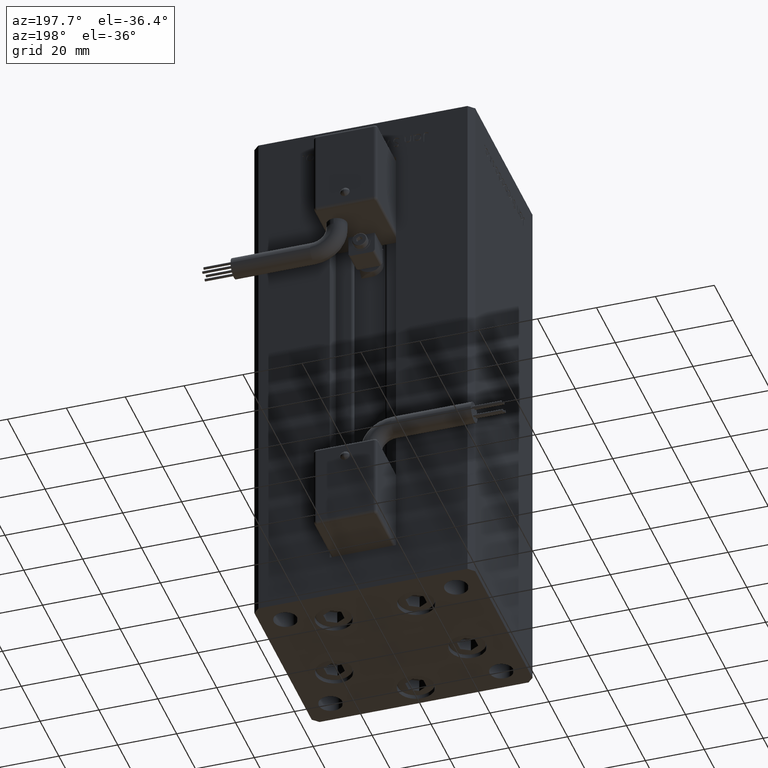
[diagram: clean part render]
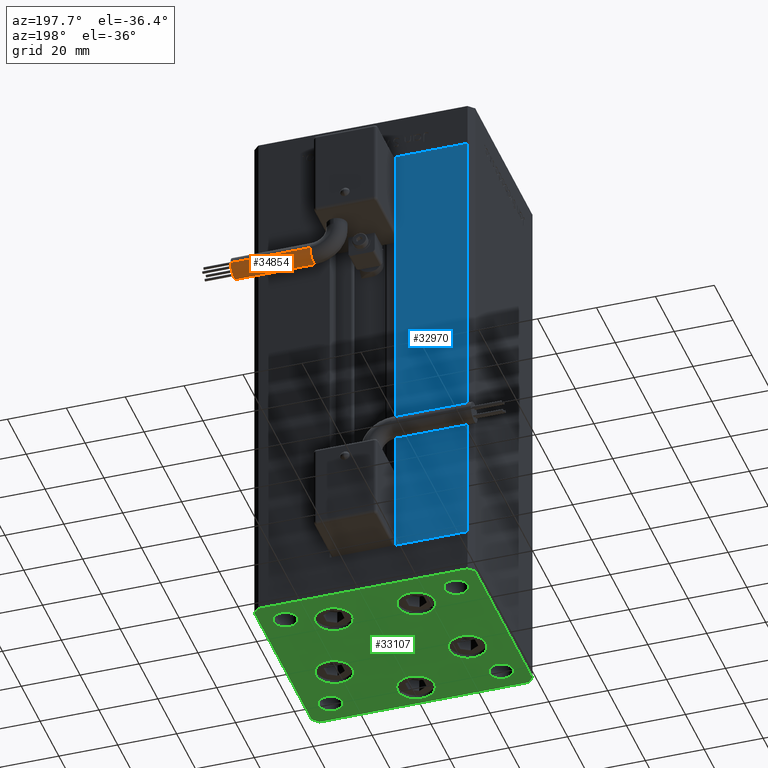
[diagram: same view with three faces highlighted in distinct colors, each labeled with its STEP entity id]
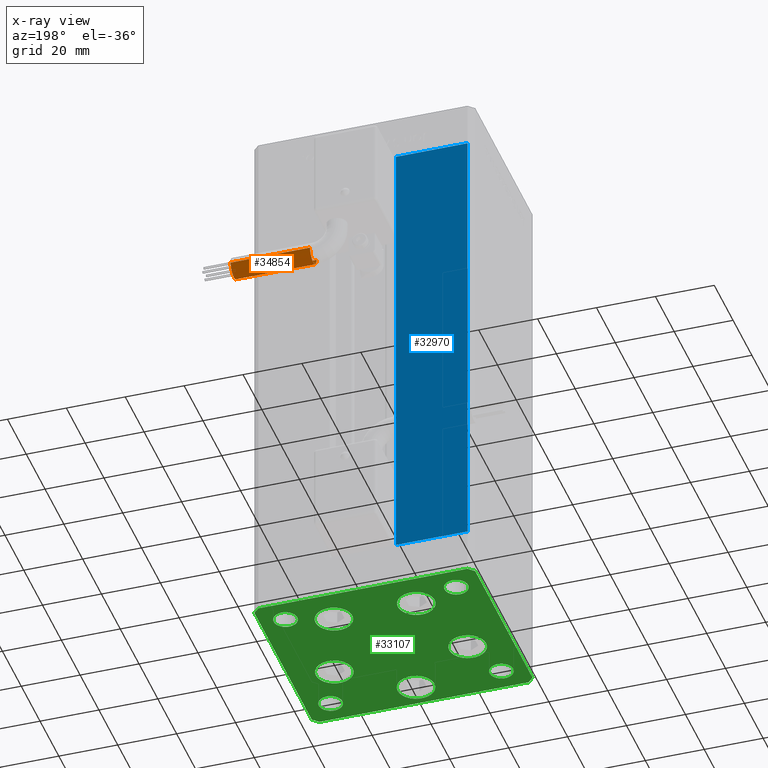
[diagram: x-ray of the same camera — body ghosted, the three highlighted faces saturated]
A machine part, auxiliary view with three faces highlighted in distinct colors.
The next image is the same camera in x-ray (body ghosted, the three faces saturated) — at least one of them is partly hidden behind the body in this view.
Their STEP definitions:

[orange] entity #34854 — the highlighted cylindrical surface (edge-blend (fillet) strip) has radius 3.5 mm, axis along (1, -0, 0).
#57 = VERTEX_POINT ( 'NONE', #15953 ) ;
#163 = CARTESIAN_POINT ( 'NONE',  ( 13.79999999999999893, 42.00000000000000000, -65.00000000000000000 ) ) ;
#803 = DIRECTION ( 'NONE',  ( 1.000000000000000000, 0.000000000000000000, 2.220446049250000002E-16 ) ) ;
#1686 = CIRCLE ( 'NONE', #48043, 3.500000000000003109 ) ;
#1739 = EDGE_CURVE ( 'NONE', #36320, #57, #17836, .T. ) ;
#2040 = ORIENTED_EDGE ( 'NONE', *, *, #25186, .F. ) ;
#2506 = CARTESIAN_POINT ( 'NONE',  ( 40.80000000000000426, 42.00000000000000000, -65.00000000000000000 ) ) ;
#3254 = CARTESIAN_POINT ( 'NONE',  ( 13.79999999999999893, 45.50000000000000711, -65.00000000000000000 ) ) ;
#5005 = DIRECTION ( 'NONE',  ( 1.000000000000000000, -2.599999999999999847E-16, 2.220446049250000002E-16 ) ) ;
#5269 = CARTESIAN_POINT ( 'NONE',  ( 13.79999999999999893, 42.00000000000000000, -65.00000000000000000 ) ) ;
#7209 = CARTESIAN_POINT ( 'NONE',  ( 13.79999999999999716, 38.50000000000000000, -65.00000000000000000 ) ) ;
#7826 = CIRCLE ( 'NONE', #38175, 3.500000000000003109 ) ;
#9467 = DIRECTION ( 'NONE',  ( 0.000000000000000000, 0.000000000000000000, -1.000000000000000000 ) ) ;
#10893 = DIRECTION ( 'NONE',  ( 0.000000000000000000, 0.000000000000000000, -1.000000000000000000 ) ) ;
#11193 = CARTESIAN_POINT ( 'NONE',  ( 13.79999999999999893, 42.00000000000000000, -68.50000000000000000 ) ) ;
#12219 = LINE ( 'NONE', #7209, #16970 ) ;
#13666 = CARTESIAN_POINT ( 'NONE',  ( 13.79999999999999893, 42.00000000000000000, -65.00000000000000000 ) ) ;
#15814 = ORIENTED_EDGE ( 'NONE', *, *, #30565, .F. ) ;
#15953 = CARTESIAN_POINT ( 'NONE',  ( 40.80000000000000426, 45.50000000000000711, -65.00000000000000000 ) ) ;
#16902 = DIRECTION ( 'NONE',  ( 0.000000000000000000, 0.000000000000000000, -1.000000000000000000 ) ) ;
#16970 = VECTOR ( 'NONE', #20583, 1000.000000000000000 ) ;
#17175 = DIRECTION ( 'NONE',  ( 1.000000000000000000, 0.000000000000000000, 2.220446049250000002E-16 ) ) ;
#17317 = FACE_OUTER_BOUND ( 'NONE', #23725, .T. ) ;
#17560 = CARTESIAN_POINT ( 'NONE',  ( 13.80000000000000071, 45.50000000000000711, -65.00000000000000000 ) ) ;
#17836 = LINE ( 'NONE', #17560, #36565 ) ;
#20583 = DIRECTION ( 'NONE',  ( 1.000000000000000000, -2.599999999999999847E-16, 2.220446049250000002E-16 ) ) ;
#21502 = DIRECTION ( 'NONE',  ( -4.956352788505158337E-16, -1.000000000000000000, 0.000000000000000000 ) ) ;
#23693 = EDGE_CURVE ( 'NONE', #44840, #36320, #7826, .T. ) ;
#23725 = EDGE_LOOP ( 'NONE', ( #52885, #30755, #45816, #2040, #15814 ) ) ;
#23921 = CIRCLE ( 'NONE', #38213, 3.500000000000003109 ) ;
#25186 = EDGE_CURVE ( 'NONE', #45062, #57, #23921, .T. ) ;
#25922 = EDGE_CURVE ( 'NONE', #41319, #44840, #1686, .T. ) ;
#26533 = DIRECTION ( 'NONE',  ( 1.000000000000000000, -2.599999999999999847E-16, 2.220446049250000002E-16 ) ) ;
#30565 = EDGE_CURVE ( 'NONE', #41319, #45062, #12219, .T. ) ;
#30755 = ORIENTED_EDGE ( 'NONE', *, *, #23693, .T. ) ;
#31356 = CARTESIAN_POINT ( 'NONE',  ( 13.79999999999999893, 38.50000000000000000, -65.00000000000000000 ) ) ;
#32277 = AXIS2_PLACEMENT_3D ( 'NONE', #13666, #26533, #21502 ) ;
#32654 = DIRECTION ( 'NONE',  ( 1.000000000000000000, 0.000000000000000000, 2.220446049250000002E-16 ) ) ;
#32892 = CARTESIAN_POINT ( 'NONE',  ( 40.80000000000000426, 38.50000000000000000, -65.00000000000000000 ) ) ;
#34854 = ADVANCED_FACE ( 'NONE', ( #17317 ), #35196, .T. ) ;
#35196 = CYLINDRICAL_SURFACE ( 'NONE', #32277, 3.500000000000003109 ) ;
#36320 = VERTEX_POINT ( 'NONE', #3254 ) ;
#36565 = VECTOR ( 'NONE', #5005, 1000.000000000000000 ) ;
#38175 = AXIS2_PLACEMENT_3D ( 'NONE', #163, #17175, #16902 ) ;
#38213 = AXIS2_PLACEMENT_3D ( 'NONE', #2506, #32654, #10893 ) ;
#41319 = VERTEX_POINT ( 'NONE', #31356 ) ;
#44840 = VERTEX_POINT ( 'NONE', #11193 ) ;
#45062 = VERTEX_POINT ( 'NONE', #32892 ) ;
#45816 = ORIENTED_EDGE ( 'NONE', *, *, #1739, .T. ) ;
#48043 = AXIS2_PLACEMENT_3D ( 'NONE', #5269, #803, #9467 ) ;
#52885 = ORIENTED_EDGE ( 'NONE', *, *, #25922, .T. ) ;

[blue] entity #32970 — the highlighted planar face has unit normal (0, -1, 0).
#443 = FACE_OUTER_BOUND ( 'NONE', #50356, .T. ) ;
#1725 = CARTESIAN_POINT ( 'NONE',  ( -35.50000000000000000, 32.49999999999999289, 156.0000000000000000 ) ) ;
#2264 = LINE ( 'NONE', #22656, #10652 ) ;
#6292 = EDGE_CURVE ( 'NONE', #42301, #49949, #33515, .T. ) ;
#6393 = VECTOR ( 'NONE', #26193, 1000.000000000000000 ) ;
#9411 = ORIENTED_EDGE ( 'NONE', *, *, #6292, .T. ) ;
#10652 = VECTOR ( 'NONE', #31865, 1000.000000000000000 ) ;
#14267 = VECTOR ( 'NONE', #41627, 1000.000000000000000 ) ;
#15640 = ORIENTED_EDGE ( 'NONE', *, *, #27811, .F. ) ;
#16972 = LINE ( 'NONE', #21717, #6393 ) ;
#17464 = DIRECTION ( 'NONE',  ( 0.000000000000000000, -0.000000000000000000, -1.000000000000000000 ) ) ;
#17644 = CARTESIAN_POINT ( 'NONE',  ( -35.50000000000000000, 32.49999999999999289, 0.000000000000000000 ) ) ;
#17668 = CARTESIAN_POINT ( 'NONE',  ( -11.25000000000000178, 32.49999999999999289, 0.000000000000000000 ) ) ;
#19935 = ORIENTED_EDGE ( 'NONE', *, *, #36749, .T. ) ;
#20544 = CARTESIAN_POINT ( 'NONE',  ( -11.25000000000000178, 32.49999999999999289, 156.0000000000000000 ) ) ;
#21290 = VERTEX_POINT ( 'NONE', #17644 ) ;
#21717 = CARTESIAN_POINT ( 'NONE',  ( -11.25000000000000178, 32.49999999999999289, 0.000000000000000000 ) ) ;
#22656 = CARTESIAN_POINT ( 'NONE',  ( -11.25000000000000178, 32.49999999999999289, 0.000000000000000000 ) ) ;
#24579 = CARTESIAN_POINT ( 'NONE',  ( -11.25000000000000178, 32.49999999999999289, 156.0000000000000000 ) ) ;
#26193 = DIRECTION ( 'NONE',  ( -1.000000000000000000, 0.000000000000000000, 0.000000000000000000 ) ) ;
#27811 = EDGE_CURVE ( 'NONE', #39331, #49949, #2264, .T. ) ;
#29354 = EDGE_CURVE ( 'NONE', #42301, #21290, #44689, .T. ) ;
#30345 = VECTOR ( 'NONE', #36585, 1000.000000000000000 ) ;
#31865 = DIRECTION ( 'NONE',  ( -0.000000000000000000, -0.000000000000000000, 1.000000000000000000 ) ) ;
#32970 = ADVANCED_FACE ( 'NONE', ( #443 ), #46240, .F. ) ;
#33515 = LINE ( 'NONE', #24579, #14267 ) ;
#35496 = CARTESIAN_POINT ( 'NONE',  ( -35.50000000000000000, 32.49999999999999289, 156.0000000000000000 ) ) ;
#36585 = DIRECTION ( 'NONE',  ( -0.000000000000000000, -0.000000000000000000, -1.000000000000000000 ) ) ;
#36749 = EDGE_CURVE ( 'NONE', #39331, #21290, #16972, .T. ) ;
#39331 = VERTEX_POINT ( 'NONE', #17668 ) ;
#40286 = AXIS2_PLACEMENT_3D ( 'NONE', #20544, #42884, #17464 ) ;
#41627 = DIRECTION ( 'NONE',  ( 1.000000000000000000, 0.000000000000000000, 0.000000000000000000 ) ) ;
#42301 = VERTEX_POINT ( 'NONE', #1725 ) ;
#42884 = DIRECTION ( 'NONE',  ( 0.000000000000000000, -1.000000000000000000, 0.000000000000000000 ) ) ;
#43376 = ORIENTED_EDGE ( 'NONE', *, *, #29354, .F. ) ;
#43429 = CARTESIAN_POINT ( 'NONE',  ( -11.25000000000000178, 32.49999999999999289, 156.0000000000000000 ) ) ;
#44689 = LINE ( 'NONE', #35496, #30345 ) ;
#46240 = PLANE ( 'NONE',  #40286 ) ;
#49949 = VERTEX_POINT ( 'NONE', #43429 ) ;
#50356 = EDGE_LOOP ( 'NONE', ( #9411, #15640, #19935, #43376 ) ) ;

[green] entity #33107 — the highlighted planar face has unit normal (0, 0, -1).
#165 = ORIENTED_EDGE ( 'NONE', *, *, #3898, .T. ) ;
#300 = CIRCLE ( 'NONE', #39536, 4.000000000000003553 ) ;
#376 = AXIS2_PLACEMENT_3D ( 'NONE', #32253, #27795, #28068 ) ;
#433 = CARTESIAN_POINT ( 'NONE',  ( 13.99106857963322348, 19.50000000000000000, 0.000000000000000000 ) ) ;
#724 = ORIENTED_EDGE ( 'NONE', *, *, #25832, .T. ) ;
#828 = DIRECTION ( 'NONE',  ( 0.000000000000000000, -0.000000000000000000, -1.000000000000000000 ) ) ;
#897 = CARTESIAN_POINT ( 'NONE',  ( -35.49999999999998579, -32.50000000000001421, 0.000000000000000000 ) ) ;
#950 = ORIENTED_EDGE ( 'NONE', *, *, #39275, .T. ) ;
#1494 = DIRECTION ( 'NONE',  ( 1.000000000000000000, 0.000000000000000000, 0.000000000000000000 ) ) ;
#1525 = DIRECTION ( 'NONE',  ( 0.000000000000000000, -0.000000000000000000, -1.000000000000000000 ) ) ;
#1571 = CIRCLE ( 'NONE', #39095, 3.999999999999996447 ) ;
#2019 = VECTOR ( 'NONE', #27411, 1000.000000000000000 ) ;
#2519 = ORIENTED_EDGE ( 'NONE', *, *, #25882, .T. ) ;
#2776 = DIRECTION ( 'NONE',  ( 0.7071067811865474617, -0.7071067811865474617, 0.000000000000000000 ) ) ;
#2799 = AXIS2_PLACEMENT_3D ( 'NONE', #39054, #13053, #47404 ) ;
#2955 = CARTESIAN_POINT ( 'NONE',  ( 22.62741699796951877, -8.000000000000000000, 0.000000000000000000 ) ) ;
#3005 = DIRECTION ( 'NONE',  ( -1.478780668045802821E-15, 1.000000000000000000, 0.000000000000000000 ) ) ;
#3149 = VERTEX_POINT ( 'NONE', #897 ) ;
#3336 = VERTEX_POINT ( 'NONE', #18139 ) ;
#3898 = EDGE_CURVE ( 'NONE', #29149, #11282, #50864, .T. ) ;
#3942 = EDGE_CURVE ( 'NONE', #27456, #33888, #44535, .T. ) ;
#3996 = CARTESIAN_POINT ( 'NONE',  ( -25.00000000000001421, 24.00000000000000711, 0.000000000000000000 ) ) ;
#4444 = LINE ( 'NONE', #43527, #26632 ) ;
#4996 = DIRECTION ( 'NONE',  ( 4.550094363217855288E-16, -1.000000000000000000, 0.000000000000000000 ) ) ;
#5069 = ORIENTED_EDGE ( 'NONE', *, *, #39832, .T. ) ;
#5156 = CIRCLE ( 'NONE', #50615, 6.250000000000000000 ) ;
#5729 = CARTESIAN_POINT ( 'NONE',  ( 13.99106857963322348, 19.50000000000000000, 0.000000000000000000 ) ) ;
#6169 = VERTEX_POINT ( 'NONE', #36601 ) ;
#6845 = CARTESIAN_POINT ( 'NONE',  ( 29.00000000000001066, -23.99999999999999289, 0.000000000000000000 ) ) ;
#7068 = ORIENTED_EDGE ( 'NONE', *, *, #22734, .T. ) ;
#7359 = CARTESIAN_POINT ( 'NONE',  ( -25.00000000000001066, -23.99999999999999289, 0.000000000000000000 ) ) ;
#7436 = AXIS2_PLACEMENT_3D ( 'NONE', #9673, #47643, #35630 ) ;
#7995 = CARTESIAN_POINT ( 'NONE',  ( 22.62741699796951877, -8.000000000000000000, 0.000000000000000000 ) ) ;
#8979 = AXIS2_PLACEMENT_3D ( 'NONE', #19078, #9884, #1494 ) ;
#9091 = DIRECTION ( 'NONE',  ( 0.000000000000000000, -0.000000000000000000, -1.000000000000000000 ) ) ;
#9228 = VERTEX_POINT ( 'NONE', #24907 ) ;
#9561 = DIRECTION ( 'NONE',  ( 1.000000000000000000, 0.000000000000000000, 0.000000000000000000 ) ) ;
#9650 = DIRECTION ( 'NONE',  ( 1.000000000000000000, 0.000000000000000000, 0.000000000000000000 ) ) ;
#9673 = CARTESIAN_POINT ( 'NONE',  ( 2.939152317953647500E-15, -24.00000000000000000, 0.000000000000000000 ) ) ;
#9884 = DIRECTION ( 'NONE',  ( 0.000000000000000000, -0.000000000000000000, -1.000000000000000000 ) ) ;
#10076 = EDGE_LOOP ( 'NONE', ( #30337, #950 ) ) ;
#10106 = CARTESIAN_POINT ( 'NONE',  ( -35.49999999999998579, -32.50000000000001421, 0.000000000000000000 ) ) ;
#10195 = FACE_OUTER_BOUND ( 'NONE', #33338, .T. ) ;
#10905 = VECTOR ( 'NONE', #28507, 999.9999999999998863 ) ;
#10985 = ORIENTED_EDGE ( 'NONE', *, *, #43400, .T. ) ;
#11282 = VERTEX_POINT ( 'NONE', #54837 ) ;
#11372 = VERTEX_POINT ( 'NONE', #53068 ) ;
#11472 = CARTESIAN_POINT ( 'NONE',  ( 37.49999999999992184, 30.50000000000001066, 0.000000000000000000 ) ) ;
#12791 = EDGE_CURVE ( 'NONE', #40446, #28739, #45049, .T. ) ;
#12915 = CARTESIAN_POINT ( 'NONE',  ( -29.00000000000001066, -23.99999999999999289, 0.000000000000000000 ) ) ;
#13053 = DIRECTION ( 'NONE',  ( 0.000000000000000000, -0.000000000000000000, -1.000000000000000000 ) ) ;
#13674 = VERTEX_POINT ( 'NONE', #3996 ) ;
#13813 = FACE_BOUND ( 'NONE', #36160, .T. ) ;
#13974 = CARTESIAN_POINT ( 'NONE',  ( -33.00000000000000711, -23.99999999999999289, 0.000000000000000000 ) ) ;
#14474 = AXIS2_PLACEMENT_3D ( 'NONE', #26856, #43894, #9561 ) ;
#14663 = DIRECTION ( 'NONE',  ( 0.000000000000000000, -0.000000000000000000, -1.000000000000000000 ) ) ;
#15225 = AXIS2_PLACEMENT_3D ( 'NONE', #6845, #28053, #53195 ) ;
#15442 = CARTESIAN_POINT ( 'NONE',  ( 16.37741699796951877, -8.000000000000000000, 0.000000000000000000 ) ) ;
#16013 = ORIENTED_EDGE ( 'NONE', *, *, #23755, .T. ) ;
#16359 = DIRECTION ( 'NONE',  ( 0.000000000000000000, -0.000000000000000000, -1.000000000000000000 ) ) ;
#17876 = CARTESIAN_POINT ( 'NONE',  ( -33.00000000000000711, 24.00000000000000711, 0.000000000000000000 ) ) ;
#18139 = CARTESIAN_POINT ( 'NONE',  ( -6.249999999999997335, -24.00000000000000000, 0.000000000000000000 ) ) ;
#18155 = AXIS2_PLACEMENT_3D ( 'NONE', #18586, #52650, #51559 ) ;
#18357 = CARTESIAN_POINT ( 'NONE',  ( 33.00000000000001421, 24.00000000000000711, 0.000000000000000000 ) ) ;
#18583 = ORIENTED_EDGE ( 'NONE', *, *, #38431, .F. ) ;
#18586 = CARTESIAN_POINT ( 'NONE',  ( -13.99106857963322703, 19.49999999999999645, 0.000000000000000000 ) ) ;
#18624 = EDGE_CURVE ( 'NONE', #51477, #11372, #29524, .T. ) ;
#18894 = VERTEX_POINT ( 'NONE', #35640 ) ;
#19016 = DIRECTION ( 'NONE',  ( -0.000000000000000000, 0.000000000000000000, 1.000000000000000000 ) ) ;
#19078 = CARTESIAN_POINT ( 'NONE',  ( -29.00000000000001066, -23.99999999999999289, 0.000000000000000000 ) ) ;
#19321 = EDGE_CURVE ( 'NONE', #13674, #40287, #1571, .T. ) ;
#19709 = DIRECTION ( 'NONE',  ( 1.000000000000000000, 0.000000000000000000, 0.000000000000000000 ) ) ;
#19723 = ORIENTED_EDGE ( 'NONE', *, *, #42223, .F. ) ;
#19934 = EDGE_CURVE ( 'NONE', #3336, #36903, #52422, .T. ) ;
#20215 = VERTEX_POINT ( 'NONE', #35022 ) ;
#20242 = CIRCLE ( 'NONE', #34539, 6.250000000000001776 ) ;
#20631 = CARTESIAN_POINT ( 'NONE',  ( -37.49999999999998579, -30.50000000000001421, 0.000000000000000000 ) ) ;
#20955 = ORIENTED_EDGE ( 'NONE', *, *, #32186, .T. ) ;
#20974 = AXIS2_PLACEMENT_3D ( 'NONE', #49767, #53684, #23274 ) ;
#21203 = AXIS2_PLACEMENT_3D ( 'NONE', #12915, #38635, #54808 ) ;
#21926 = FACE_BOUND ( 'NONE', #28893, .T. ) ;
#22047 = CARTESIAN_POINT ( 'NONE',  ( 29.00000000000001066, -23.99999999999999289, 0.000000000000000000 ) ) ;
#22188 = DIRECTION ( 'NONE',  ( 1.000000000000000000, 0.000000000000000000, 0.000000000000000000 ) ) ;
#22427 = EDGE_LOOP ( 'NONE', ( #165, #38842 ) ) ;
#22568 = LINE ( 'NONE', #35161, #42703 ) ;
#22734 = EDGE_CURVE ( 'NONE', #49313, #42552, #20242, .T. ) ;
#23125 = EDGE_CURVE ( 'NONE', #25449, #45343, #31895, .T. ) ;
#23274 = DIRECTION ( 'NONE',  ( 1.000000000000000000, 0.000000000000000000, 0.000000000000000000 ) ) ;
#23425 = VECTOR ( 'NONE', #48574, 1000.000000000000000 ) ;
#23755 = EDGE_CURVE ( 'NONE', #31217, #6169, #5156, .T. ) ;
#23913 = DIRECTION ( 'NONE',  ( 0.000000000000000000, -0.000000000000000000, -1.000000000000000000 ) ) ;
#24123 = VECTOR ( 'NONE', #52918, 1000.000000000000000 ) ;
#24907 = CARTESIAN_POINT ( 'NONE',  ( 25.00000000000000711, 24.00000000000000711, 0.000000000000000000 ) ) ;
#25449 = VERTEX_POINT ( 'NONE', #13974 ) ;
#25832 = EDGE_CURVE ( 'NONE', #20215, #51477, #4444, .T. ) ;
#25882 = EDGE_CURVE ( 'NONE', #26149, #18894, #22568, .T. ) ;
#26149 = VERTEX_POINT ( 'NONE', #42374 ) ;
#26386 = CARTESIAN_POINT ( 'NONE',  ( -13.99106857963322703, 19.49999999999999645, 0.000000000000000000 ) ) ;
#26632 = VECTOR ( 'NONE', #38528, 1000.000000000000000 ) ;
#26856 = CARTESIAN_POINT ( 'NONE',  ( 29.00000000000001066, 24.00000000000000711, 0.000000000000000000 ) ) ;
#26945 = FACE_BOUND ( 'NONE', #38375, .T. ) ;
#26964 = CIRCLE ( 'NONE', #14474, 4.000000000000003553 ) ;
#27411 = DIRECTION ( 'NONE',  ( 1.000000000000000000, 9.773090005503140331E-17, 0.000000000000000000 ) ) ;
#27432 = VECTOR ( 'NONE', #3005, 1000.000000000000000 ) ;
#27456 = VERTEX_POINT ( 'NONE', #43132 ) ;
#27517 = CARTESIAN_POINT ( 'NONE',  ( 2.939152317953647500E-15, -24.00000000000000000, 0.000000000000000000 ) ) ;
#27795 = DIRECTION ( 'NONE',  ( -0.000000000000000000, 0.000000000000000000, 1.000000000000000000 ) ) ;
#27900 = CARTESIAN_POINT ( 'NONE',  ( 28.87741699796952233, -8.000000000000000000, 0.000000000000000000 ) ) ;
#28053 = DIRECTION ( 'NONE',  ( 0.000000000000000000, -0.000000000000000000, -1.000000000000000000 ) ) ;
#28068 = DIRECTION ( 'NONE',  ( 1.000000000000000000, 0.000000000000000000, 0.000000000000000000 ) ) ;
#28171 = CARTESIAN_POINT ( 'NONE',  ( -35.50000000000002842, 32.49999999999999289, 0.000000000000000000 ) ) ;
#28329 = CARTESIAN_POINT ( 'NONE',  ( 33.00000000000001421, -23.99999999999999289, 0.000000000000000000 ) ) ;
#28507 = DIRECTION ( 'NONE',  ( -0.7071067811865482389, 0.7071067811865469066, 0.000000000000000000 ) ) ;
#28580 = EDGE_CURVE ( 'NONE', #18894, #3149, #28743, .T. ) ;
#28649 = AXIS2_PLACEMENT_3D ( 'NONE', #7995, #16359, #45960 ) ;
#28676 = CIRCLE ( 'NONE', #2799, 6.250000000000001776 ) ;
#28739 = VERTEX_POINT ( 'NONE', #30682 ) ;
#28743 = LINE ( 'NONE', #20631, #37436 ) ;
#28893 = EDGE_LOOP ( 'NONE', ( #48370, #32852 ) ) ;
#28921 = CARTESIAN_POINT ( 'NONE',  ( 20.24106857963322526, 19.50000000000000000, 0.000000000000000000 ) ) ;
#29149 = VERTEX_POINT ( 'NONE', #28329 ) ;
#29524 = LINE ( 'NONE', #32874, #27432 ) ;
#30270 = EDGE_CURVE ( 'NONE', #45343, #25449, #46394, .T. ) ;
#30337 = ORIENTED_EDGE ( 'NONE', *, *, #32040, .T. ) ;
#30592 = FACE_BOUND ( 'NONE', #32044, .T. ) ;
#30682 = CARTESIAN_POINT ( 'NONE',  ( -28.87741699796952233, -8.000000000000005329, 0.000000000000000000 ) ) ;
#30752 = ORIENTED_EDGE ( 'NONE', *, *, #19934, .T. ) ;
#30862 = FACE_BOUND ( 'NONE', #10076, .T. ) ;
#31217 = VERTEX_POINT ( 'NONE', #28921 ) ;
#31296 = AXIS2_PLACEMENT_3D ( 'NONE', #433, #31404, #52340 ) ;
#31404 = DIRECTION ( 'NONE',  ( 0.000000000000000000, -0.000000000000000000, -1.000000000000000000 ) ) ;
#31439 = DIRECTION ( 'NONE',  ( 1.000000000000000000, 0.000000000000000000, 0.000000000000000000 ) ) ;
#31688 = FACE_BOUND ( 'NONE', #51193, .T. ) ;
#31895 = CIRCLE ( 'NONE', #21203, 4.000000000000000000 ) ;
#32040 = EDGE_CURVE ( 'NONE', #53421, #45897, #50008, .T. ) ;
#32044 = EDGE_LOOP ( 'NONE', ( #20955, #16013 ) ) ;
#32100 = CARTESIAN_POINT ( 'NONE',  ( -16.37741699796951877, -8.000000000000005329, 0.000000000000000000 ) ) ;
#32186 = EDGE_CURVE ( 'NONE', #6169, #31217, #48228, .T. ) ;
#32253 = CARTESIAN_POINT ( 'NONE',  ( 29.00000000000001066, 24.00000000000000711, 0.000000000000000000 ) ) ;
#32590 = ORIENTED_EDGE ( 'NONE', *, *, #37032, .T. ) ;
#32718 = DIRECTION ( 'NONE',  ( -0.000000000000000000, 0.000000000000000000, 1.000000000000000000 ) ) ;
#32852 = ORIENTED_EDGE ( 'NONE', *, *, #23125, .T. ) ;
#32874 = CARTESIAN_POINT ( 'NONE',  ( 37.50000000000001421, -30.50000000000000711, 0.000000000000000000 ) ) ;
#33107 = ADVANCED_FACE ( 'NONE', ( #30862, #30592, #48168, #31688, #52082, #13813, #52629, #26945, #10195, #21926 ), #47892, .T. ) ;
#33164 = AXIS2_PLACEMENT_3D ( 'NONE', #49747, #32718, #53661 ) ;
#33250 = CARTESIAN_POINT ( 'NONE',  ( -35.50000000000002842, 32.49999999999999289, 0.000000000000000000 ) ) ;
#33338 = EDGE_LOOP ( 'NONE', ( #52076, #50780, #724, #38042, #38074, #34519, #10985, #2519 ) ) ;
#33888 = VERTEX_POINT ( 'NONE', #33250 ) ;
#34519 = ORIENTED_EDGE ( 'NONE', *, *, #3942, .T. ) ;
#34539 = AXIS2_PLACEMENT_3D ( 'NONE', #2955, #23913, #19709 ) ;
#35022 = CARTESIAN_POINT ( 'NONE',  ( 35.50000000000000711, -32.50000000000000711, 0.000000000000000000 ) ) ;
#35062 = VERTEX_POINT ( 'NONE', #18357 ) ;
#35161 = CARTESIAN_POINT ( 'NONE',  ( -37.50000000000001421, 30.49999999999998579, 0.000000000000000000 ) ) ;
#35630 = DIRECTION ( 'NONE',  ( 1.000000000000000000, 0.000000000000000000, 0.000000000000000000 ) ) ;
#35640 = CARTESIAN_POINT ( 'NONE',  ( -37.49999999999998579, -30.50000000000001421, 0.000000000000000000 ) ) ;
#35769 = AXIS2_PLACEMENT_3D ( 'NONE', #26386, #9091, #22188 ) ;
#35839 = CIRCLE ( 'NONE', #33164, 3.999999999999996447 ) ;
#36160 = EDGE_LOOP ( 'NONE', ( #19723, #40146 ) ) ;
#36601 = CARTESIAN_POINT ( 'NONE',  ( 7.741068579633223479, 19.50000000000000000, 0.000000000000000000 ) ) ;
#36903 = VERTEX_POINT ( 'NONE', #44044 ) ;
#37032 = EDGE_CURVE ( 'NONE', #42552, #49313, #45581, .T. ) ;
#37436 = VECTOR ( 'NONE', #2776, 1000.000000000000114 ) ;
#38042 = ORIENTED_EDGE ( 'NONE', *, *, #18624, .T. ) ;
#38074 = ORIENTED_EDGE ( 'NONE', *, *, #43216, .T. ) ;
#38375 = EDGE_LOOP ( 'NONE', ( #54150, #18583 ) ) ;
#38431 = EDGE_CURVE ( 'NONE', #40287, #13674, #35839, .T. ) ;
#38528 = DIRECTION ( 'NONE',  ( 0.7071067811865487940, 0.7071067811865463515, 0.000000000000000000 ) ) ;
#38635 = DIRECTION ( 'NONE',  ( 0.000000000000000000, -0.000000000000000000, -1.000000000000000000 ) ) ;
#38842 = ORIENTED_EDGE ( 'NONE', *, *, #48641, .T. ) ;
#39054 = CARTESIAN_POINT ( 'NONE',  ( -22.62741699796951877, -8.000000000000005329, 0.000000000000000000 ) ) ;
#39095 = AXIS2_PLACEMENT_3D ( 'NONE', #39433, #19016, #39703 ) ;
#39185 = CARTESIAN_POINT ( 'NONE',  ( -20.24106857963322881, 19.49999999999999645, 0.000000000000000000 ) ) ;
#39209 = EDGE_CURVE ( 'NONE', #36903, #3336, #53774, .T. ) ;
#39275 = EDGE_CURVE ( 'NONE', #45897, #53421, #50230, .T. ) ;
#39401 = AXIS2_PLACEMENT_3D ( 'NONE', #48724, #43163, #9650 ) ;
#39415 = EDGE_LOOP ( 'NONE', ( #5069, #42688 ) ) ;
#39433 = CARTESIAN_POINT ( 'NONE',  ( -29.00000000000001066, 24.00000000000000711, 0.000000000000000000 ) ) ;
#39536 = AXIS2_PLACEMENT_3D ( 'NONE', #22047, #828, #43557 ) ;
#39703 = DIRECTION ( 'NONE',  ( 1.000000000000000000, 0.000000000000000000, 0.000000000000000000 ) ) ;
#39832 = EDGE_CURVE ( 'NONE', #28739, #40446, #28676, .T. ) ;
#40146 = ORIENTED_EDGE ( 'NONE', *, *, #51930, .F. ) ;
#40287 = VERTEX_POINT ( 'NONE', #17876 ) ;
#40446 = VERTEX_POINT ( 'NONE', #32100 ) ;
#40765 = LINE ( 'NONE', #28171, #23425 ) ;
#41613 = ORIENTED_EDGE ( 'NONE', *, *, #39209, .T. ) ;
#42223 = EDGE_CURVE ( 'NONE', #35062, #9228, #26964, .T. ) ;
#42294 = EDGE_CURVE ( 'NONE', #3149, #20215, #45254, .T. ) ;
#42374 = CARTESIAN_POINT ( 'NONE',  ( -37.50000000000001421, 30.49999999999998579, 0.000000000000000000 ) ) ;
#42552 = VERTEX_POINT ( 'NONE', #27900 ) ;
#42688 = ORIENTED_EDGE ( 'NONE', *, *, #12791, .T. ) ;
#42703 = VECTOR ( 'NONE', #4996, 1000.000000000000000 ) ;
#43132 = CARTESIAN_POINT ( 'NONE',  ( 35.49999999999992184, 32.50000000000000711, 0.000000000000000000 ) ) ;
#43163 = DIRECTION ( 'NONE',  ( -0.000000000000000000, 0.000000000000000000, 1.000000000000000000 ) ) ;
#43216 = EDGE_CURVE ( 'NONE', #11372, #27456, #50546, .T. ) ;
#43400 = EDGE_CURVE ( 'NONE', #33888, #26149, #40765, .T. ) ;
#43527 = CARTESIAN_POINT ( 'NONE',  ( 35.50000000000000711, -32.50000000000000711, 0.000000000000000000 ) ) ;
#43557 = DIRECTION ( 'NONE',  ( 1.000000000000000000, 0.000000000000000000, 0.000000000000000000 ) ) ;
#43894 = DIRECTION ( 'NONE',  ( -0.000000000000000000, 0.000000000000000000, 1.000000000000000000 ) ) ;
#44044 = CARTESIAN_POINT ( 'NONE',  ( 6.250000000000002665, -24.00000000000000000, 0.000000000000000000 ) ) ;
#44535 = LINE ( 'NONE', #45078, #24123 ) ;
#45049 = CIRCLE ( 'NONE', #20974, 6.250000000000001776 ) ;
#45078 = CARTESIAN_POINT ( 'NONE',  ( 35.49999999999992184, 32.50000000000000711, 0.000000000000000000 ) ) ;
#45254 = LINE ( 'NONE', #10106, #2019 ) ;
#45343 = VERTEX_POINT ( 'NONE', #7359 ) ;
#45581 = CIRCLE ( 'NONE', #28649, 6.250000000000001776 ) ;
#45897 = VERTEX_POINT ( 'NONE', #55013 ) ;
#45960 = DIRECTION ( 'NONE',  ( 1.000000000000000000, 0.000000000000000000, 0.000000000000000000 ) ) ;
#46205 = AXIS2_PLACEMENT_3D ( 'NONE', #27517, #14663, #31439 ) ;
#46394 = CIRCLE ( 'NONE', #8979, 4.000000000000000000 ) ;
#47404 = DIRECTION ( 'NONE',  ( 1.000000000000000000, 0.000000000000000000, 0.000000000000000000 ) ) ;
#47643 = DIRECTION ( 'NONE',  ( 0.000000000000000000, -0.000000000000000000, -1.000000000000000000 ) ) ;
#47892 = PLANE ( 'NONE',  #39401 ) ;
#48161 = DIRECTION ( 'NONE',  ( 1.000000000000000000, 0.000000000000000000, 0.000000000000000000 ) ) ;
#48168 = FACE_BOUND ( 'NONE', #50989, .T. ) ;
#48228 = CIRCLE ( 'NONE', #31296, 6.250000000000000000 ) ;
#48370 = ORIENTED_EDGE ( 'NONE', *, *, #30270, .T. ) ;
#48527 = CIRCLE ( 'NONE', #376, 4.000000000000003553 ) ;
#48574 = DIRECTION ( 'NONE',  ( -0.7071067811865426878, -0.7071067811865524577, 0.000000000000000000 ) ) ;
#48641 = EDGE_CURVE ( 'NONE', #11282, #29149, #300, .T. ) ;
#48724 = CARTESIAN_POINT ( 'NONE',  ( 0.000000000000000000, 0.000000000000000000, 0.000000000000000000 ) ) ;
#49313 = VERTEX_POINT ( 'NONE', #15442 ) ;
#49747 = CARTESIAN_POINT ( 'NONE',  ( -29.00000000000001066, 24.00000000000000711, 0.000000000000000000 ) ) ;
#49767 = CARTESIAN_POINT ( 'NONE',  ( -22.62741699796951877, -8.000000000000005329, 0.000000000000000000 ) ) ;
#50008 = CIRCLE ( 'NONE', #35769, 6.250000000000000000 ) ;
#50230 = CIRCLE ( 'NONE', #18155, 6.250000000000000000 ) ;
#50546 = LINE ( 'NONE', #11472, #10905 ) ;
#50615 = AXIS2_PLACEMENT_3D ( 'NONE', #5729, #1525, #48161 ) ;
#50780 = ORIENTED_EDGE ( 'NONE', *, *, #42294, .T. ) ;
#50864 = CIRCLE ( 'NONE', #15225, 4.000000000000003553 ) ;
#50989 = EDGE_LOOP ( 'NONE', ( #7068, #32590 ) ) ;
#51193 = EDGE_LOOP ( 'NONE', ( #30752, #41613 ) ) ;
#51414 = CARTESIAN_POINT ( 'NONE',  ( 37.50000000000001421, -30.50000000000000711, 0.000000000000000000 ) ) ;
#51477 = VERTEX_POINT ( 'NONE', #51414 ) ;
#51559 = DIRECTION ( 'NONE',  ( 1.000000000000000000, 0.000000000000000000, 0.000000000000000000 ) ) ;
#51930 = EDGE_CURVE ( 'NONE', #9228, #35062, #48527, .T. ) ;
#52076 = ORIENTED_EDGE ( 'NONE', *, *, #28580, .T. ) ;
#52082 = FACE_BOUND ( 'NONE', #39415, .T. ) ;
#52340 = DIRECTION ( 'NONE',  ( 1.000000000000000000, 0.000000000000000000, 0.000000000000000000 ) ) ;
#52422 = CIRCLE ( 'NONE', #46205, 6.250000000000000000 ) ;
#52629 = FACE_BOUND ( 'NONE', #22427, .T. ) ;
#52650 = DIRECTION ( 'NONE',  ( 0.000000000000000000, -0.000000000000000000, -1.000000000000000000 ) ) ;
#52918 = DIRECTION ( 'NONE',  ( -1.000000000000000000, -1.954618001100629052E-16, 0.000000000000000000 ) ) ;
#53068 = CARTESIAN_POINT ( 'NONE',  ( 37.49999999999992184, 30.50000000000001066, 0.000000000000000000 ) ) ;
#53195 = DIRECTION ( 'NONE',  ( 1.000000000000000000, 0.000000000000000000, 0.000000000000000000 ) ) ;
#53421 = VERTEX_POINT ( 'NONE', #39185 ) ;
#53661 = DIRECTION ( 'NONE',  ( 1.000000000000000000, 0.000000000000000000, 0.000000000000000000 ) ) ;
#53684 = DIRECTION ( 'NONE',  ( 0.000000000000000000, -0.000000000000000000, -1.000000000000000000 ) ) ;
#53774 = CIRCLE ( 'NONE', #7436, 6.250000000000000000 ) ;
#54150 = ORIENTED_EDGE ( 'NONE', *, *, #19321, .F. ) ;
#54808 = DIRECTION ( 'NONE',  ( 1.000000000000000000, 0.000000000000000000, 0.000000000000000000 ) ) ;
#54837 = CARTESIAN_POINT ( 'NONE',  ( 25.00000000000000711, -23.99999999999999289, 0.000000000000000000 ) ) ;
#55013 = CARTESIAN_POINT ( 'NONE',  ( -7.741068579633227031, 19.49999999999999645, 0.000000000000000000 ) ) ;